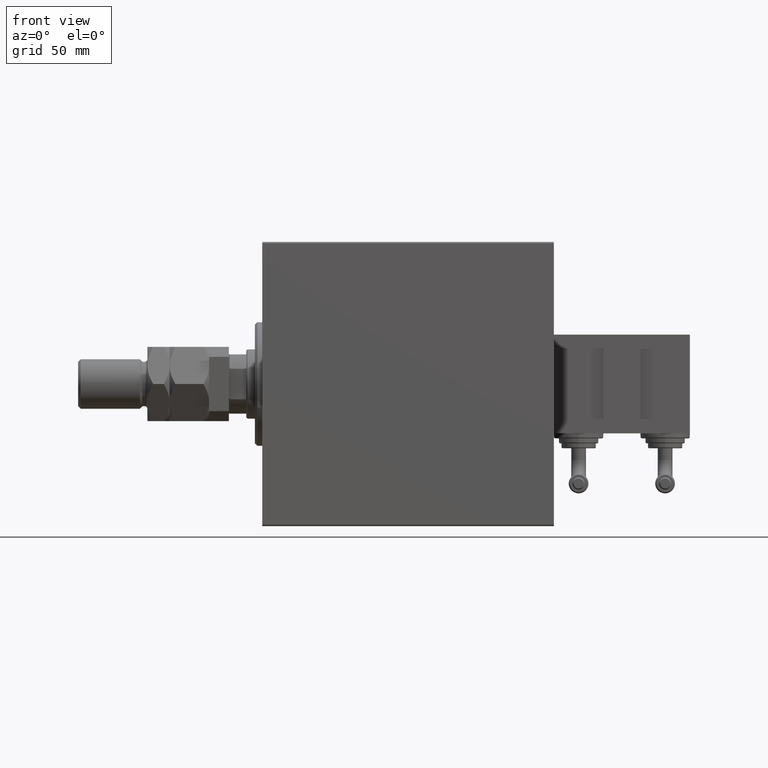
[diagram: clean part render]
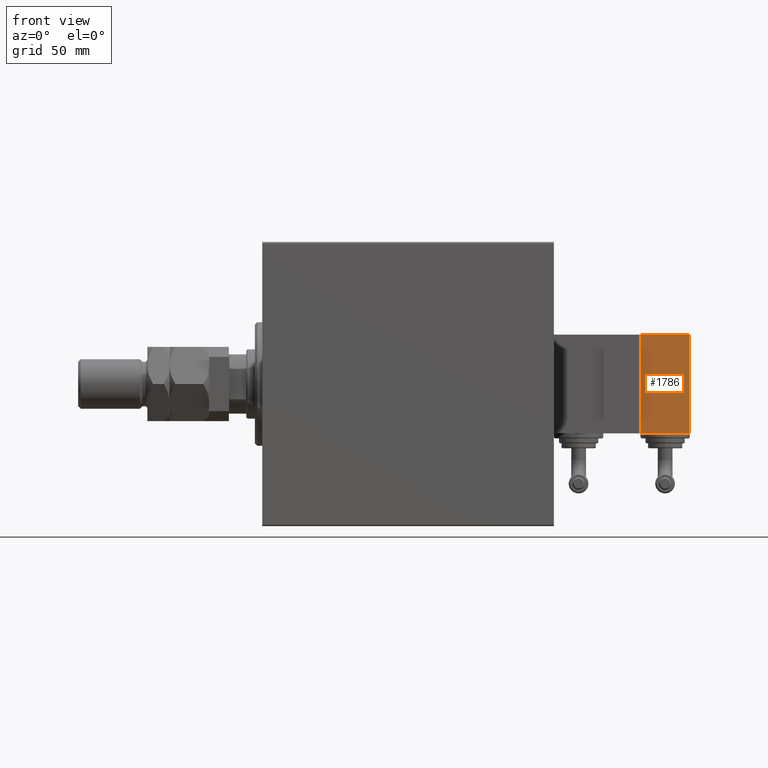
[diagram: same view with one face highlighted and labeled with its STEP entity id]
A machine part, front view. The second image highlights one B-rep face of the part: STEP entity #1786.
In plain terms, the highlighted planar face has unit normal (0, 1, 0).
Its self-contained STEP definition (entity closure, byte-faithful):
#1271 = EDGE_CURVE ( 'NONE', #8483, #36058, #16786, .T. ) ;
#1786 = ADVANCED_FACE ( 'NONE', ( #35502 ), #31758, .F. ) ;
#2486 = AXIS2_PLACEMENT_3D ( 'NONE', #44783, #47989, #52243 ) ;
#3767 = CARTESIAN_POINT ( 'NONE',  ( 20.00000000000005329, -17.49999999999996092, -9.999999999999998224 ) ) ;
#7315 = VECTOR ( 'NONE', #52441, 1000.000000000000000 ) ;
#8358 = DIRECTION ( 'NONE',  ( 1.000000000000000000, 0.000000000000000000, 0.000000000000000000 ) ) ;
#8396 = ORIENTED_EDGE ( 'NONE', *, *, #18680, .T. ) ;
#8483 = VERTEX_POINT ( 'NONE', #37175 ) ;
#8678 = EDGE_LOOP ( 'NONE', ( #39043, #18568, #8396, #11114 ) ) ;
#10481 = CARTESIAN_POINT ( 'NONE',  ( -19.99999999999994316, -17.49999999999996092, -9.999999999999998224 ) ) ;
#11114 = ORIENTED_EDGE ( 'NONE', *, *, #47521, .T. ) ;
#14188 = VERTEX_POINT ( 'NONE', #49188 ) ;
#16786 = LINE ( 'NONE', #33006, #39841 ) ;
#17137 = VECTOR ( 'NONE', #8358, 1000.000000000000000 ) ;
#17405 = LINE ( 'NONE', #49317, #17137 ) ;
#18568 = ORIENTED_EDGE ( 'NONE', *, *, #1271, .T. ) ;
#18680 = EDGE_CURVE ( 'NONE', #36058, #37585, #31607, .T. ) ;
#25798 = CARTESIAN_POINT ( 'NONE',  ( -19.99999999999994316, -17.49999999999996092, 10.00000000000000000 ) ) ;
#26066 = EDGE_CURVE ( 'NONE', #14188, #8483, #48713, .T. ) ;
#31607 = LINE ( 'NONE', #36121, #35237 ) ;
#31758 = PLANE ( 'NONE',  #2486 ) ;
#33006 = CARTESIAN_POINT ( 'NONE',  ( -19.99999999999994316, -17.49999999999996092, 10.00000000000000000 ) ) ;
#34001 = DIRECTION ( 'NONE',  ( -1.000000000000000000, -0.000000000000000000, -0.000000000000000000 ) ) ;
#35237 = VECTOR ( 'NONE', #35604, 1000.000000000000000 ) ;
#35502 = FACE_OUTER_BOUND ( 'NONE', #8678, .T. ) ;
#35604 = DIRECTION ( 'NONE',  ( -0.000000000000000000, -0.000000000000000000, -1.000000000000000000 ) ) ;
#36058 = VERTEX_POINT ( 'NONE', #25798 ) ;
#36121 = CARTESIAN_POINT ( 'NONE',  ( -19.99999999999994316, -17.49999999999996092, -9.999999999999998224 ) ) ;
#37175 = CARTESIAN_POINT ( 'NONE',  ( 20.00000000000005329, -17.49999999999996092, 10.00000000000000000 ) ) ;
#37585 = VERTEX_POINT ( 'NONE', #10481 ) ;
#39043 = ORIENTED_EDGE ( 'NONE', *, *, #26066, .T. ) ;
#39841 = VECTOR ( 'NONE', #34001, 1000.000000000000000 ) ;
#44783 = CARTESIAN_POINT ( 'NONE',  ( 0.000000000000000000, -17.49999999999996092, 0.000000000000000000 ) ) ;
#47521 = EDGE_CURVE ( 'NONE', #37585, #14188, #17405, .T. ) ;
#47989 = DIRECTION ( 'NONE',  ( 0.000000000000000000, 1.000000000000000000, 0.000000000000000000 ) ) ;
#48713 = LINE ( 'NONE', #3767, #7315 ) ;
#49188 = CARTESIAN_POINT ( 'NONE',  ( 20.00000000000005329, -17.49999999999996092, -9.999999999999998224 ) ) ;
#49317 = CARTESIAN_POINT ( 'NONE',  ( -19.99999999999994316, -17.49999999999996092, -9.999999999999998224 ) ) ;
#52243 = DIRECTION ( 'NONE',  ( 0.000000000000000000, -0.000000000000000000, 1.000000000000000000 ) ) ;
#52441 = DIRECTION ( 'NONE',  ( 0.000000000000000000, 0.000000000000000000, 1.000000000000000000 ) ) ;